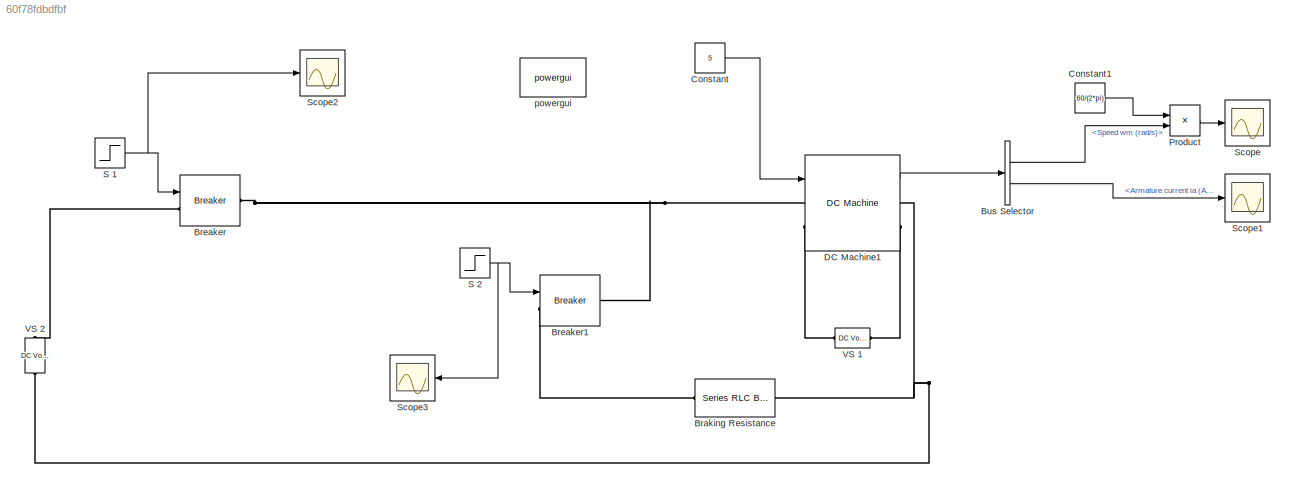
MODEL slx_60f78fdbdfbf
KIND model
CONFIG AbsTol = auto
CONFIG EnableMultiTasking = on
CONFIG FixedStep = auto
CONFIG MaxStep = auto
CONFIG MinStep = auto
CONFIG RelTol = 1e-3
CONFIG SampleTimeConstraint = Unconstrained
CONFIG SolverName = VariableStepAuto
CONFIG StartTime = 0.0
CONFIG StopTime = 5
BLOCK [Reference] Braking Resistance  REF=spsSeriesRLCBranchLib/Series RLC Branch
  Ports = [0, 0, 0, 0, 0, 1, 1]
  SourceBlock = spsSeriesRLCBranchLib/Series RLC Branch
  SourceProductBaseCode = PS
  SourceType = Series RLC Branch
BLOCK [Reference] Breaker  REF=spsBreakerLib/Breaker
  Ports = [1, 0, 0, 0, 0, 1, 1]
  SourceBlock = spsBreakerLib/Breaker
  SourceProductBaseCode = PS
  SourceType = Breaker
BLOCK [Reference] Breaker1  REF=spsBreakerLib/Breaker
  Ports = [1, 0, 0, 0, 0, 1, 1]
  SourceBlock = spsBreakerLib/Breaker
  SourceProductBaseCode = PS
  SourceType = Breaker
BLOCK [BusSelector] Bus Selector
  OutputSignals = Speed wm (rad/s),Armature current ia (A)
  Ports = [1, 2]
BLOCK [Constant] Constant
  NameLocation = top
  Value = 5
BLOCK [Constant] Constant1
  NameLocation = top
  Value = 60/(2*pi)
BLOCK [Reference] DC Machine1  REF=spsDCMachineLib/DC Machine
  Ports = [1, 1, 0, 0, 0, 2, 2]
  SourceBlock = spsDCMachineLib/DC Machine
  SourceProductBaseCode = PS
  SourceType = DC machine
BLOCK [Product] Product
  Ports = [2, 1]
BLOCK [Step] S 1
  After = 0
  Before = 1
  SampleTime = 0
  Time = 0.5296
BLOCK [Step] S 2
  SampleTime = 0
  Time = 0.5296
BLOCK [Scope] Scope
  Floating = off
  NumInputPorts = 1
  Ports = [1]
  ScopeSpecificationString = Simulink.scopes.TimeScopeBlockCfg('CurrentConfiguration', extmgr.ConfigurationSet(extmgr.Configuration('Core','General UI',true,'FigureColor',[1 1 1]),extmgr.Configuration('Core','Source UI',true),extmgr.Configuration('Sources','WiredSimulink',true),extmgr.Configuration('Visuals','Time Domain',true,'SerializedDisplays',{struct('MinYLimReal','-11128.64033','MaxYLimReal','99784.28173','YLabelReal','...<+1820ch>
BLOCK [Scope] Scope1
  Floating = off
  NumInputPorts = 1
  Ports = [1]
  ScopeSpecificationString = Simulink.scopes.TimeScopeBlockCfg('CurrentConfiguration', extmgr.ConfigurationSet(extmgr.Configuration('Core','General UI',true,'FigureColor',[1 1 1]),extmgr.Configuration('Core','Source UI',true),extmgr.Configuration('Sources','WiredSimulink',true,'DataLoggingVariableName','ScopeData1'),extmgr.Configuration('Visuals','Time Domain',true,'SerializedDisplays',{struct('MinYLimReal','-8383.97115','Max...<+1788ch>
BLOCK [Scope] Scope2
  Floating = off
  NumInputPorts = 1
  Ports = [1]
  ScopeSpecificationString = Simulink.scopes.TimeScopeBlockCfg('CurrentConfiguration', extmgr.ConfigurationSet(extmgr.Configuration('Core','General UI',true,'FigureColor',[1 1 1]),extmgr.Configuration('Core','Source UI',true),extmgr.Configuration('Sources','WiredSimulink',true,'DataLoggingVariableName','ScopeData1'),extmgr.Configuration('Visuals','Time Domain',true,'SerializedDisplays',{struct('MinYLimReal','-0.13367','MaxYLi...<+1579ch>
BLOCK [Scope] Scope3
  Floating = off
  NameLocation = top
  NumInputPorts = 1
  Ports = [1]
  ScopeSpecificationString = Simulink.scopes.TimeScopeBlockCfg('CurrentConfiguration', extmgr.ConfigurationSet(extmgr.Configuration('Core','General UI',true,'FigureColor',[1 1 1]),extmgr.Configuration('Core','Source UI',true),extmgr.Configuration('Sources','WiredSimulink',true,'DataLoggingVariableName','ScopeData2'),extmgr.Configuration('Visuals','Time Domain',true,'SerializedDisplays',{struct('MinYLimReal','-0.13078','MaxYLi...<+1555ch>
BLOCK [Reference] VS 1  REF=spsDCVoltageSourceLib/DC Voltage Source
  Ports = [0, 0, 0, 0, 0, 1, 1]
  SourceBlock = spsDCVoltageSourceLib/DC Voltage Source
  SourceProductBaseCode = PS
  SourceType = DC Voltage Source
BLOCK [Reference] VS 2  REF=spsDCVoltageSourceLib/DC Voltage Source
  NameLocation = left
  Ports = [0, 0, 0, 0, 0, 1, 1]
  SourceBlock = spsDCVoltageSourceLib/DC Voltage Source
  SourceProductBaseCode = PS
  SourceType = DC Voltage Source
BLOCK [Reference] powergui  REF=spspowerguiLib/powergui
  Ports = []
  Priority = 1
  SourceBlock = spspowerguiLib/powergui
  SourceProductBaseCode = PS
  SourceType = PSB option menu block
LINE Bus Selector:1 -> Product:2
LINE Bus Selector:2 -> Scope1:1
LINE Constant1:1 -> Product:1
LINE Constant:1 -> DC Machine1:1
LINE DC Machine1:1 -> Bus Selector:1
LINE Product:1 -> Scope:1
NET S 1:1 -> Breaker:1, Scope2:1
NET S 2:1 -> Breaker1:1, Scope3:1
PLINE Braking Resistance:LConn1 -- Breaker1:LConn1
PNET net1: Braking Resistance:RConn1 -- DC Machine1:RConn1 -- VS 2:LConn1
PNET net2: Breaker1:RConn1 -- Breaker:RConn1 -- DC Machine1:LConn1
PLINE Breaker:LConn1 -- VS 2:RConn1
PLINE DC Machine1:LConn2 -- VS 1:RConn1
PLINE DC Machine1:RConn2 -- VS 1:LConn1
note: NET lines group one-source signal fan-out (src -> all destinations, sorted); 1:1 wires keep LINE; PNET lines group multi-terminal physical nets as a canonical sorted terminal list (undirected conserving connections); 2-terminal nets keep the pairwise PLINE form
